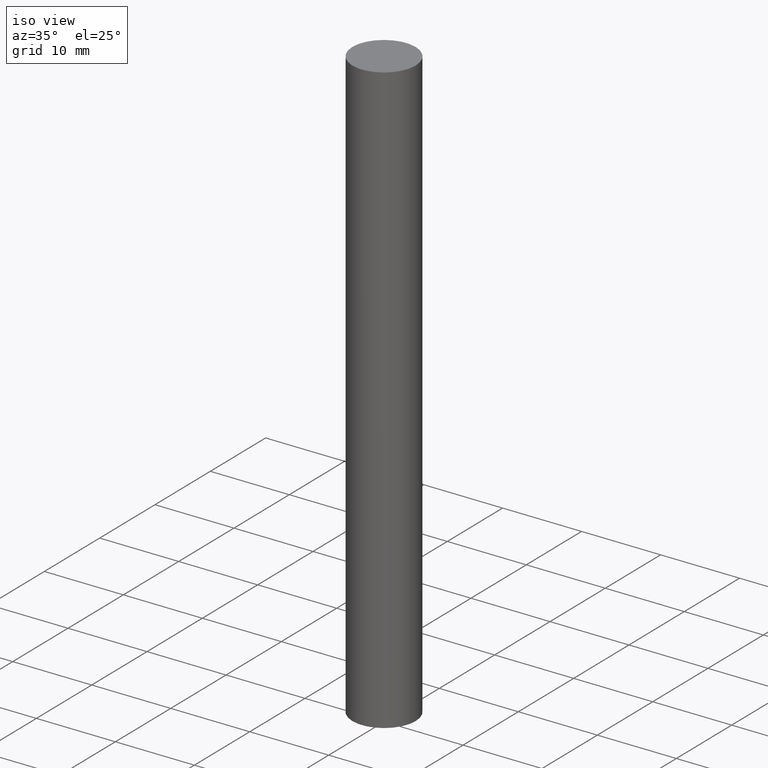
[diagram: clean part render]
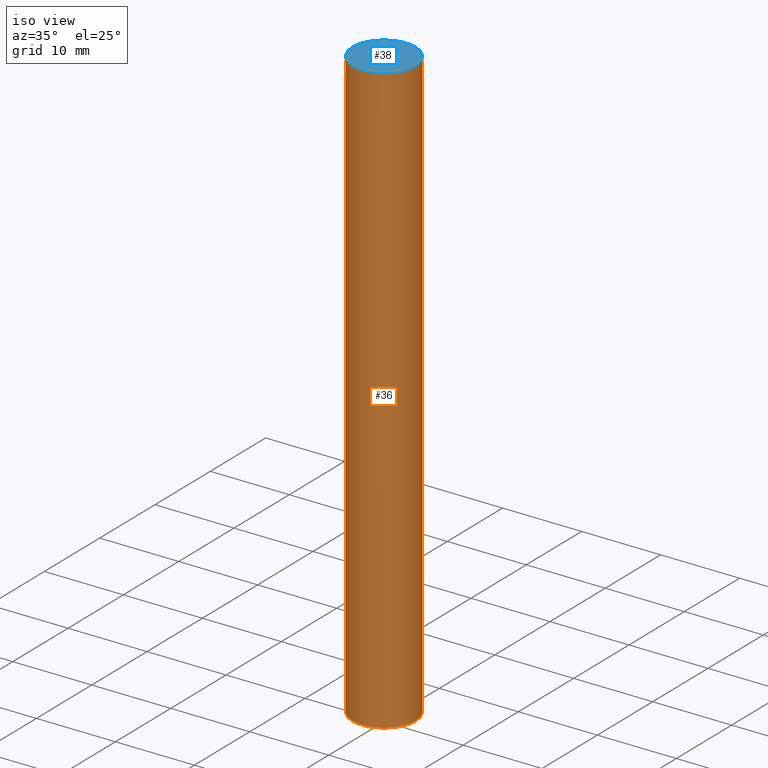
[diagram: same view with the hole feature highlighted: cylindrical wall and planar end face, labeled with their STEP entity ids]
A machine part, iso view. The highlighted faces form one hole feature of diameter 8 mm: the cylindrical wall (entity #36, orange) and its adjacent planar end face (entity #38, blue) — they share a circular edge in the B-rep.
Wall:
#17=FACE_BOUND('',#22,.T.);
#18=FACE_OUTER_BOUND('',#21,.T.);
#21=EDGE_LOOP('',(#31));
#22=EDGE_LOOP('',(#32));
#25=CIRCLE('',#42,3.999999999984);
#26=CIRCLE('',#43,3.999999999984);
#27=VERTEX_POINT('',#60);
#28=VERTEX_POINT('',#62);
#29=EDGE_CURVE('',#27,#27,#25,.T.);
#30=EDGE_CURVE('',#28,#28,#26,.T.);
#31=ORIENTED_EDGE('',*,*,#29,.F.);
#32=ORIENTED_EDGE('',*,*,#30,.T.);
#35=CYLINDRICAL_SURFACE('',#41,3.999999999984);
#36=ADVANCED_FACE('',(#18,#17),#35,.T.);
#41=AXIS2_PLACEMENT_3D('',#59,#48,#49);
#42=AXIS2_PLACEMENT_3D('',#61,#50,#51);
#43=AXIS2_PLACEMENT_3D('',#63,#52,#53);
#48=DIRECTION('center_axis',(0.,0.,1.));
#49=DIRECTION('ref_axis',(1.,0.,0.));
#50=DIRECTION('center_axis',(0.,0.,1.));
#51=DIRECTION('ref_axis',(1.,0.,0.));
#52=DIRECTION('center_axis',(0.,0.,1.));
#53=DIRECTION('ref_axis',(1.,0.,0.));
#59=CARTESIAN_POINT('Origin',(0.,0.,0.));
#60=CARTESIAN_POINT('',(-3.999999999984,0.,75.));
#61=CARTESIAN_POINT('Origin',(0.,0.,75.));
#62=CARTESIAN_POINT('',(-3.999999999984,0.,0.));
#63=CARTESIAN_POINT('Origin',(0.,0.,0.));
End face:
#16=PLANE('',#45);
#20=FACE_OUTER_BOUND('',#24,.T.);
#24=EDGE_LOOP('',(#34));
#25=CIRCLE('',#42,3.999999999984);
#27=VERTEX_POINT('',#60);
#29=EDGE_CURVE('',#27,#27,#25,.T.);
#34=ORIENTED_EDGE('',*,*,#29,.T.);
#38=ADVANCED_FACE('',(#20),#16,.T.);
#42=AXIS2_PLACEMENT_3D('',#61,#50,#51);
#45=AXIS2_PLACEMENT_3D('',#65,#56,#57);
#50=DIRECTION('center_axis',(0.,0.,1.));
#51=DIRECTION('ref_axis',(1.,0.,0.));
#56=DIRECTION('center_axis',(0.,0.,1.));
#57=DIRECTION('ref_axis',(1.,0.,0.));
#60=CARTESIAN_POINT('',(-3.999999999984,0.,75.));
#61=CARTESIAN_POINT('Origin',(0.,0.,75.));
#65=CARTESIAN_POINT('Origin',(-4.80000472477425,-4.80000472479378,75.));